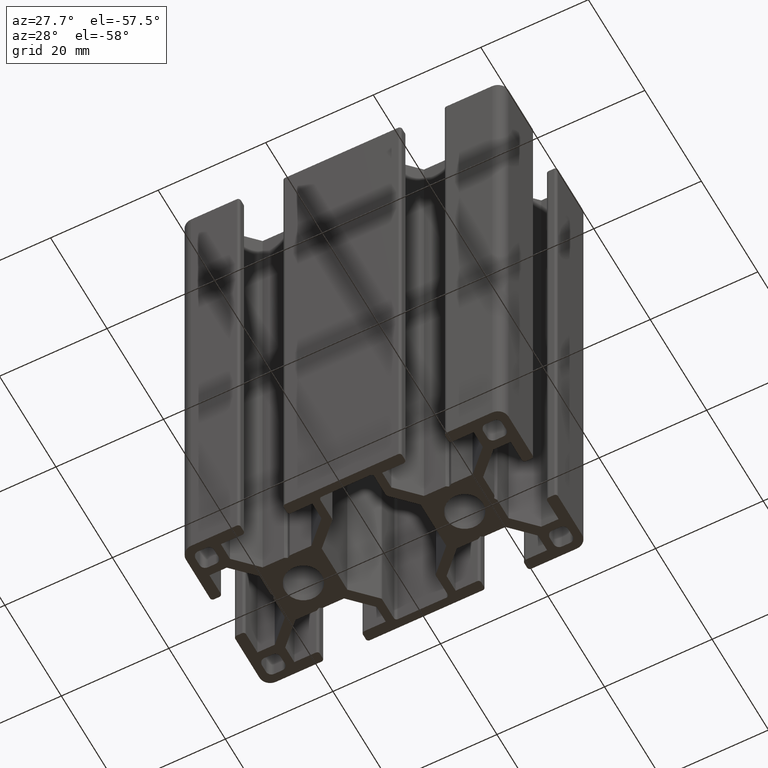
[diagram: clean part render]
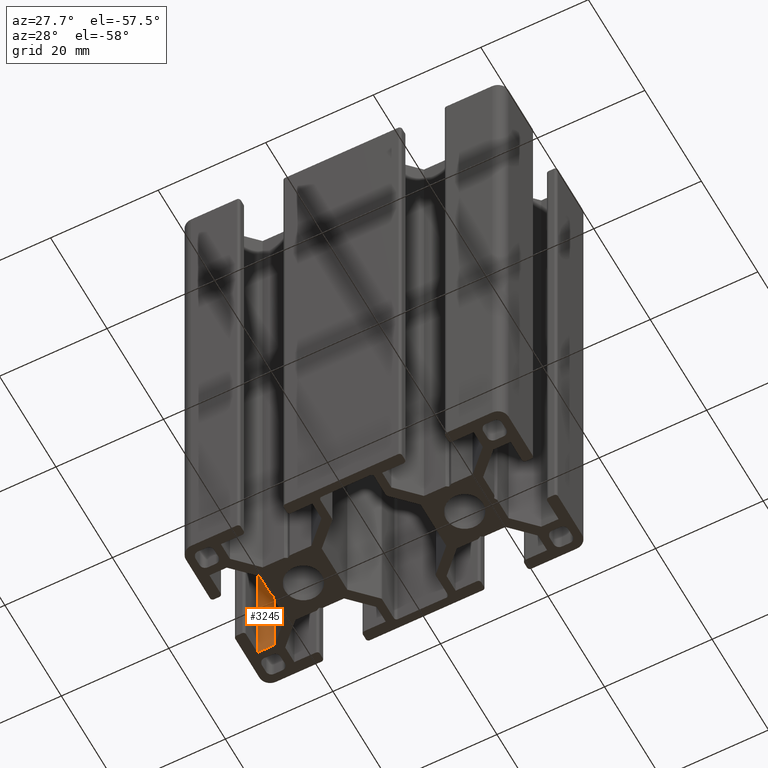
[diagram: same view with one face highlighted and labeled with its STEP entity id]
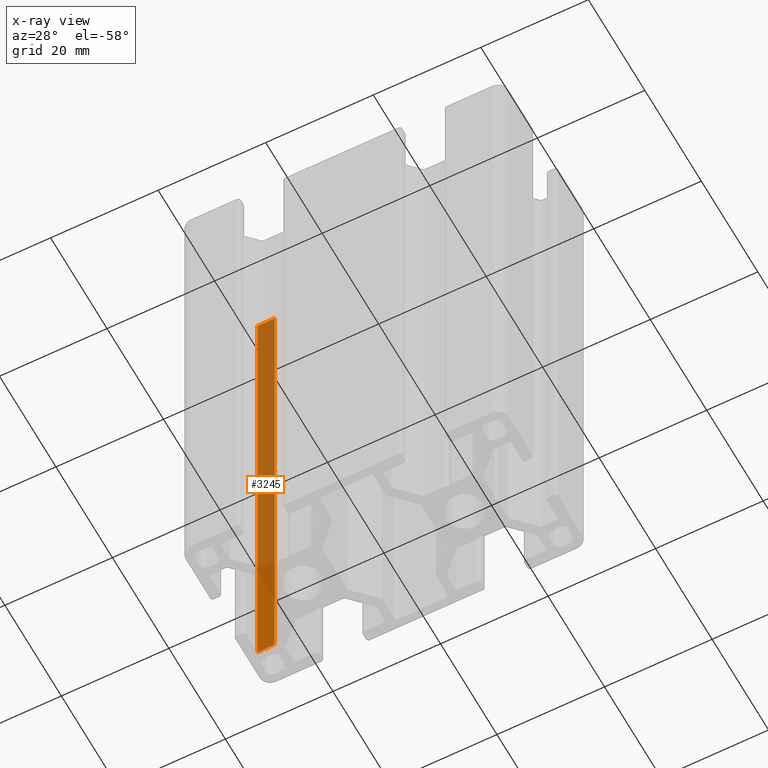
[diagram: x-ray of the same camera — body ghosted, the highlighted face saturated]
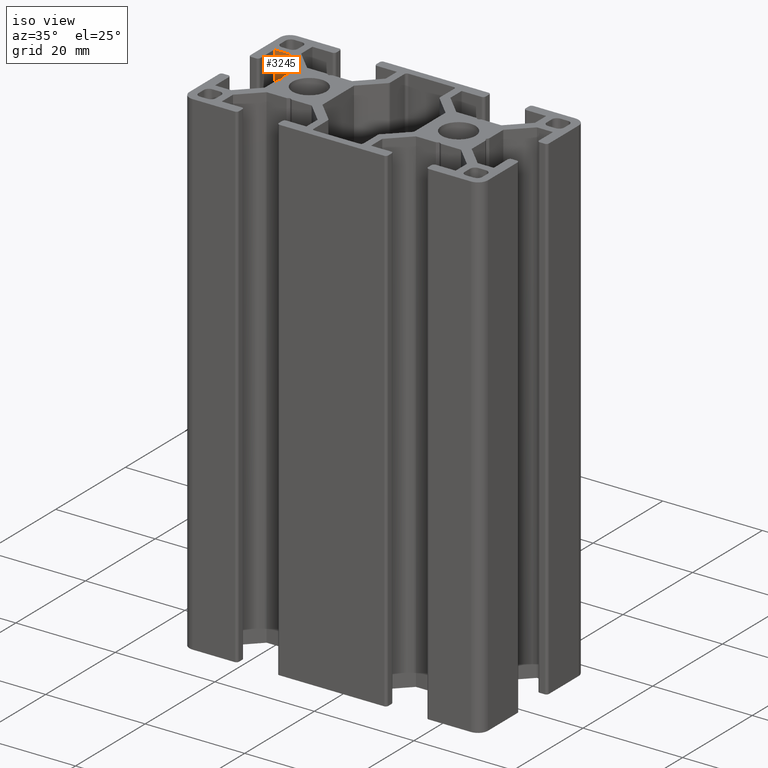
[diagram: same view with one face highlighted and labeled with its STEP entity id]
A machine part, auxiliary view. The second image highlights one B-rep face of the part: STEP entity #3245.
The next image is the same camera in x-ray: the body ghosted, the highlighted face saturated — about 81% of this face is hidden behind the body in this view.
A second angle (iso view) of the same face is appended — the face is thin or edge-on in the first view.
In plain terms, the highlighted planar face has unit normal (0, 1, 0).
Its self-contained STEP definition (entity closure, byte-faithful):
#223=FACE_OUTER_BOUND('',#389,.T.);
#389=EDGE_LOOP('',(#2243,#2244,#2245,#2246));
#608=LINE('',#4775,#990);
#609=LINE('',#4778,#991);
#610=LINE('',#4780,#992);
#611=LINE('',#4781,#993);
#990=VECTOR('',#3834,100.);
#991=VECTOR('',#3837,3.22720706355981);
#992=VECTOR('',#3838,3.22720706355981);
#993=VECTOR('',#3839,100.);
#1367=VERTEX_POINT('',#4771);
#1368=VERTEX_POINT('',#4773);
#1369=VERTEX_POINT('',#4777);
#1370=VERTEX_POINT('',#4779);
#1724=EDGE_CURVE('',#1368,#1367,#608,.T.);
#1725=EDGE_CURVE('',#1367,#1369,#609,.T.);
#1726=EDGE_CURVE('',#1370,#1368,#610,.T.);
#1727=EDGE_CURVE('',#1370,#1369,#611,.T.);
#2243=ORIENTED_EDGE('',*,*,#1725,.F.);
#2244=ORIENTED_EDGE('',*,*,#1724,.F.);
#2245=ORIENTED_EDGE('',*,*,#1726,.F.);
#2246=ORIENTED_EDGE('',*,*,#1727,.T.);
#3121=PLANE('',#3437);
#3245=ADVANCED_FACE('',(#223),#3121,.F.);
#3437=AXIS2_PLACEMENT_3D('',#4776,#3835,#3836);
#3834=DIRECTION('',(0.,0.,1.));
#3835=DIRECTION('center_axis',(0.,1.,0.));
#3836=DIRECTION('ref_axis',(0.,0.,1.));
#3837=DIRECTION('',(1.,0.,0.));
#3838=DIRECTION('',(-1.,0.,0.));
#3839=DIRECTION('',(0.,0.,1.));
#4771=CARTESIAN_POINT('',(-27.999997104,8.49999811299997,100.));
#4773=CARTESIAN_POINT('',(-27.999997104,8.49999811299997,0.));
#4775=CARTESIAN_POINT('',(-27.999997104,8.49999811299997,0.));
#4776=CARTESIAN_POINT('Origin',(-27.999997104,8.49999811299997,0.));
#4777=CARTESIAN_POINT('',(-24.7727900404402,8.49999811299997,100.));
#4778=CARTESIAN_POINT('',(-14.000000217,8.49999811299997,100.));
#4779=CARTESIAN_POINT('',(-24.7727900404402,8.49999811299997,0.));
#4780=CARTESIAN_POINT('',(-14.000000217,8.49999811299997,0.));
#4781=CARTESIAN_POINT('',(-24.7727900404402,8.49999811299997,0.));